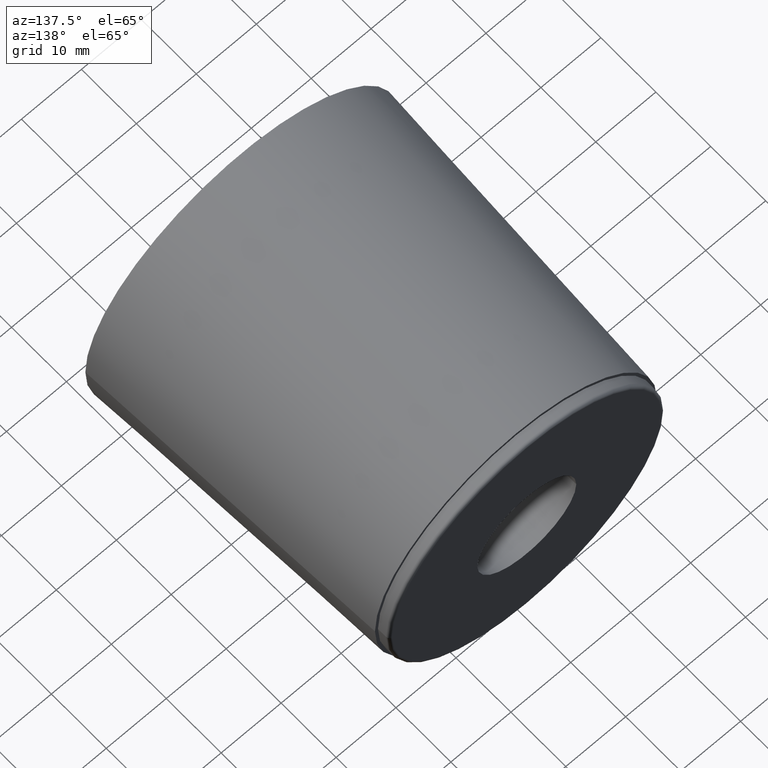
[diagram: clean part render]
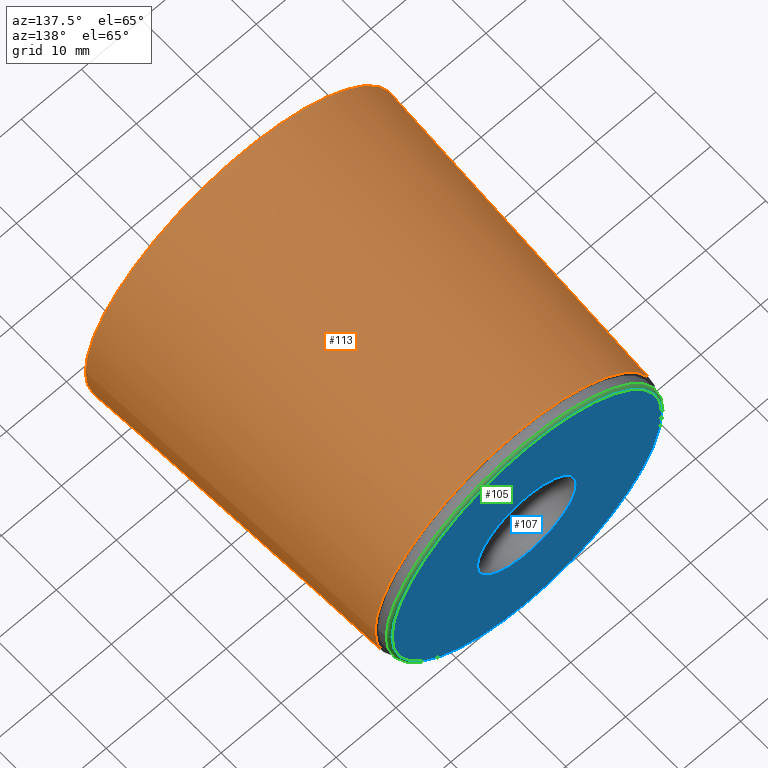
[diagram: same view with three faces highlighted in distinct colors, each labeled with its STEP entity id]
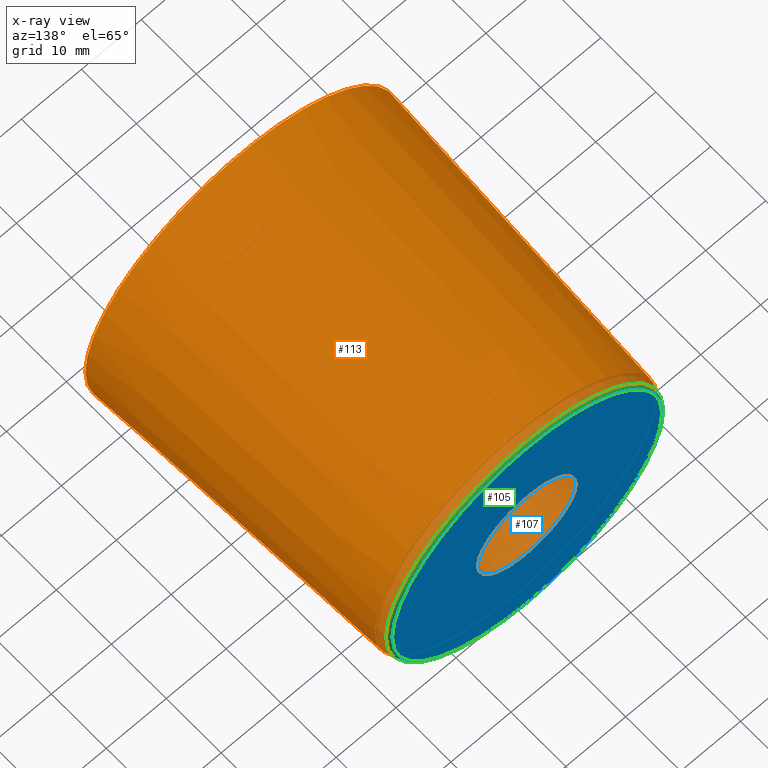
[diagram: x-ray of the same camera — body ghosted, the three highlighted faces saturated]
A machine part, auxiliary view with three faces highlighted in distinct colors.
The next image is the same camera in x-ray (body ghosted, the three faces saturated) — at least one of them is partly hidden behind the body in this view.
Their STEP definitions:

[orange] entity #113 — the highlighted conical surface has half-angle 2.862 deg.
#15=CONICAL_SURFACE('',#133,26.,2.86240522611175);
#31=FACE_BOUND('',#58,.T.);
#40=FACE_OUTER_BOUND('',#57,.T.);
#57=EDGE_LOOP('',(#102));
#58=EDGE_LOOP('',(#103));
#66=CIRCLE('',#130,23.5);
#67=CIRCLE('',#132,26.);
#75=VERTEX_POINT('',#194);
#76=VERTEX_POINT('',#197);
#84=EDGE_CURVE('',#75,#75,#66,.T.);
#85=EDGE_CURVE('',#76,#76,#67,.T.);
#102=ORIENTED_EDGE('',*,*,#85,.T.);
#103=ORIENTED_EDGE('',*,*,#84,.T.);
#113=ADVANCED_FACE('',(#40,#31),#15,.T.);
#130=AXIS2_PLACEMENT_3D('',#195,#164,#165);
#132=AXIS2_PLACEMENT_3D('',#198,#168,#169);
#133=AXIS2_PLACEMENT_3D('',#199,#170,#171);
#164=DIRECTION('center_axis',(0.,-1.,0.));
#165=DIRECTION('ref_axis',(1.,0.,0.));
#168=DIRECTION('center_axis',(0.,1.,0.));
#169=DIRECTION('ref_axis',(1.,0.,0.));
#170=DIRECTION('center_axis',(0.,-1.,0.));
#171=DIRECTION('ref_axis',(1.,0.,0.));
#194=CARTESIAN_POINT('',(23.5,50.,0.));
#195=CARTESIAN_POINT('Origin',(0.,50.,0.));
#197=CARTESIAN_POINT('',(26.,0.,0.));
#198=CARTESIAN_POINT('Origin',(0.,0.,0.));
#199=CARTESIAN_POINT('Origin',(0.,0.,0.));

[blue] entity #107 — the highlighted planar face has unit normal (0, 1, 0).
#16=PLANE('',#121);
#25=FACE_BOUND('',#46,.T.);
#34=FACE_OUTER_BOUND('',#45,.T.);
#45=EDGE_LOOP('',(#90));
#46=EDGE_LOOP('',(#91));
#60=CIRCLE('',#118,22.5);
#62=CIRCLE('',#122,8.25);
#69=VERTEX_POINT('',#176);
#71=VERTEX_POINT('',#182);
#78=EDGE_CURVE('',#69,#69,#60,.T.);
#80=EDGE_CURVE('',#71,#71,#62,.T.);
#90=ORIENTED_EDGE('',*,*,#78,.F.);
#91=ORIENTED_EDGE('',*,*,#80,.T.);
#107=ADVANCED_FACE('',(#34,#25),#16,.T.);
#118=AXIS2_PLACEMENT_3D('',#177,#140,#141);
#121=AXIS2_PLACEMENT_3D('',#181,#146,#147);
#122=AXIS2_PLACEMENT_3D('',#183,#148,#149);
#140=DIRECTION('center_axis',(0.,-1.,0.));
#141=DIRECTION('ref_axis',(-1.,0.,0.));
#146=DIRECTION('center_axis',(0.,1.,0.));
#147=DIRECTION('ref_axis',(0.,0.,1.));
#148=DIRECTION('center_axis',(0.,-1.,0.));
#149=DIRECTION('ref_axis',(-1.,0.,0.));
#176=CARTESIAN_POINT('',(22.5,52.,2.75545529808155E-15));
#177=CARTESIAN_POINT('Origin',(0.,52.,0.));
#181=CARTESIAN_POINT('Origin',(-8.78331520343913E-16,52.,-3.21803775253669E-16));
#182=CARTESIAN_POINT('',(8.25,52.,-1.01033360929657E-15));
#183=CARTESIAN_POINT('Origin',(0.,52.,0.));

[green] entity #105 — the highlighted toroidal blend (fillet) surface has major radius 22.5 mm and minor (blend) radius 0.5 mm.
#23=FACE_BOUND('',#42,.T.);
#32=FACE_OUTER_BOUND('',#41,.T.);
#41=EDGE_LOOP('',(#86));
#42=EDGE_LOOP('',(#87));
#59=CIRCLE('',#117,23.);
#60=CIRCLE('',#118,22.5);
#68=VERTEX_POINT('',#174);
#69=VERTEX_POINT('',#176);
#77=EDGE_CURVE('',#68,#68,#59,.T.);
#78=EDGE_CURVE('',#69,#69,#60,.T.);
#86=ORIENTED_EDGE('',*,*,#77,.T.);
#87=ORIENTED_EDGE('',*,*,#78,.T.);
#104=TOROIDAL_SURFACE('',#116,22.5,0.5);
#105=ADVANCED_FACE('',(#32,#23),#104,.T.);
#116=AXIS2_PLACEMENT_3D('',#173,#136,#137);
#117=AXIS2_PLACEMENT_3D('',#175,#138,#139);
#118=AXIS2_PLACEMENT_3D('',#177,#140,#141);
#136=DIRECTION('center_axis',(0.,1.,0.));
#137=DIRECTION('ref_axis',(0.,0.,1.));
#138=DIRECTION('center_axis',(0.,1.,0.));
#139=DIRECTION('ref_axis',(-1.,0.,0.));
#140=DIRECTION('center_axis',(0.,-1.,0.));
#141=DIRECTION('ref_axis',(-1.,0.,0.));
#173=CARTESIAN_POINT('Origin',(0.,51.5,0.));
#174=CARTESIAN_POINT('',(23.,51.5,-2.81668763803891E-15));
#175=CARTESIAN_POINT('Origin',(0.,51.5,0.));
#176=CARTESIAN_POINT('',(22.5,52.,2.75545529808155E-15));
#177=CARTESIAN_POINT('Origin',(0.,52.,0.));